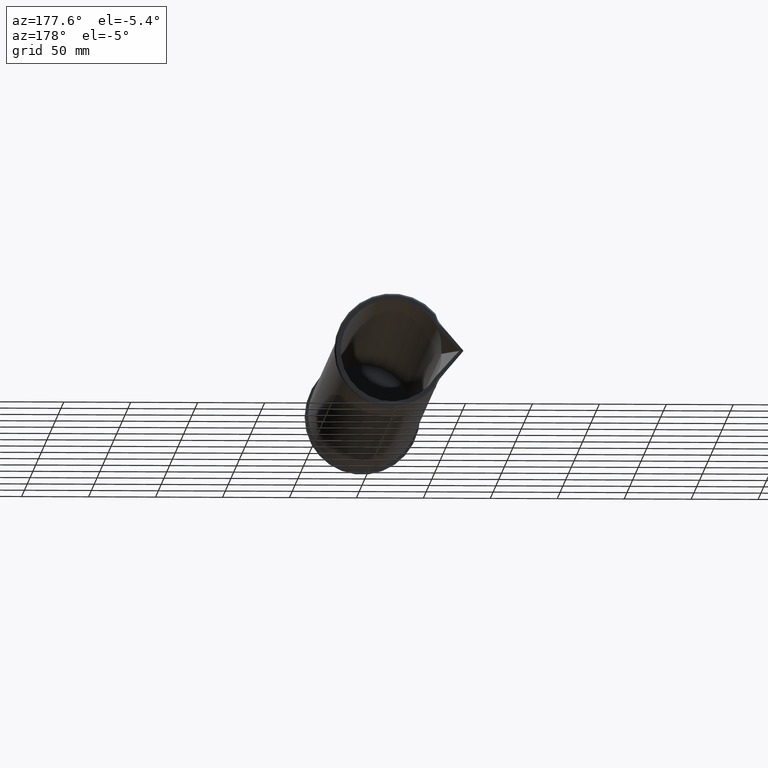
[diagram: clean part render]
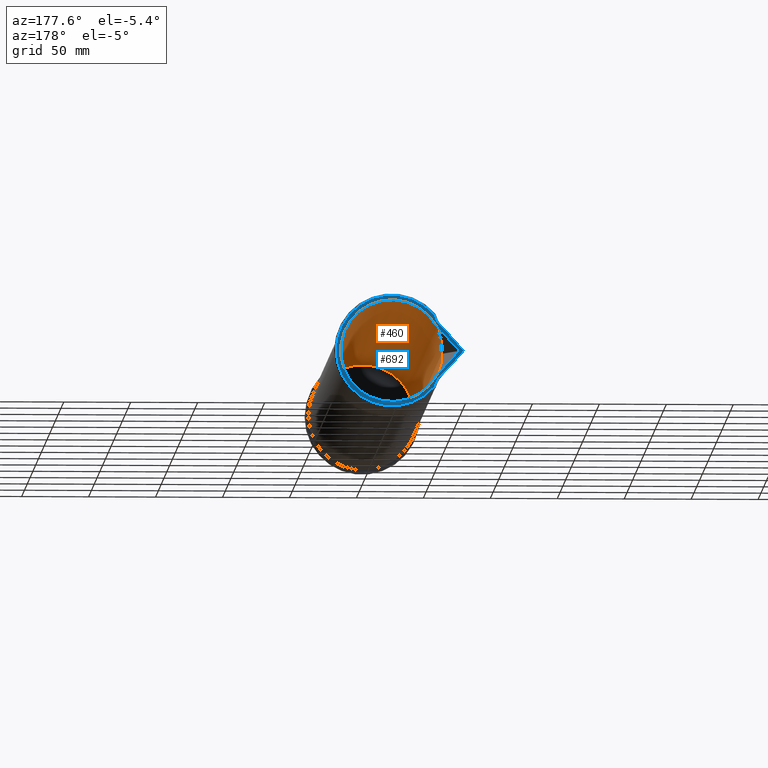
[diagram: same view with the hole feature highlighted: cylindrical wall and planar end face, labeled with their STEP entity ids]
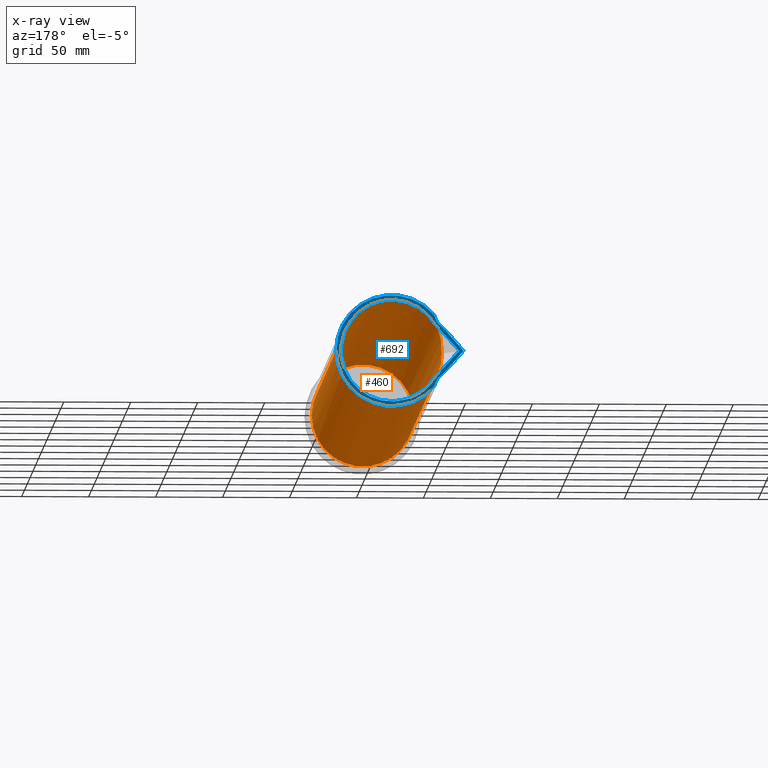
[diagram: x-ray of the same camera — body ghosted, the hole faces saturated]
A machine part, auxiliary view. The highlighted faces form one hole feature of diameter 76.36 mm: the cylindrical wall (entity #460, orange) and its adjacent planar end face (entity #692, blue) — they share a circular edge in the B-rep.
The next image is the same camera in x-ray (body ghosted, the hole faces saturated) — the bore reads through the body.
Wall:
#415=CARTESIAN_POINT('',(84.763954280378201,36.315100107620083,6.691971759253232));
#416=DIRECTION('',(0.0,0.0,1.0));
#417=DIRECTION('',(1.0,0.0,0.0));
#418=AXIS2_PLACEMENT_3D('',#415,#416,#417);
#419=CYLINDRICAL_SURFACE('',#418,1.503150212703601);
#420=CARTESIAN_POINT('',(83.260804067674599,36.315100107620083,6.972227477893022));
#421=VERTEX_POINT('',#420);
#422=CARTESIAN_POINT('',(84.763954280378201,36.315100107620083,6.972227477893022));
#423=DIRECTION('',(0.0,0.0,-1.0));
#424=DIRECTION('',(1.0,0.0,0.0));
#425=AXIS2_PLACEMENT_3D('',#422,#423,#424);
#426=CIRCLE('',#425,1.503150212703601);
#427=EDGE_CURVE('',#421,#421,#426,.T.);
#428=ORIENTED_EDGE('',*,*,#427,.T.);
#429=EDGE_LOOP('',(#428));
#430=FACE_OUTER_BOUND('',#429,.T.);
#431=CARTESIAN_POINT('',(83.462283038224228,35.563360432399826,27.312227586678503));
#432=VERTEX_POINT('',#431);
#433=CARTESIAN_POINT('',(83.260804067674599,36.315100107755640,26.335767806022361));
#434=VERTEX_POINT('',#433);
#435=CARTESIAN_POINT('',(84.763954280378201,36.315100107620083,23.294374467178745));
#436=DIRECTION('',(0.694654597459767,0.632128613092258,0.343319685916884));
#437=DIRECTION('',(0.253922352300887,0.231066756025292,-0.939218607812863));
#438=AXIS2_PLACEMENT_3D('',#435,#436,#437);
#439=ELLIPSE('',#438,4.378281451263788,1.503150212703602);
#440=EDGE_CURVE('',#432,#434,#439,.F.);
#441=ORIENTED_EDGE('',*,*,#440,.F.);
#442=CARTESIAN_POINT('',(83.462283038626268,37.066839783548723,27.312227586678503));
#443=VERTEX_POINT('',#442);
#444=CARTESIAN_POINT('',(84.763954280378201,36.315100107620083,27.312227586678503));
#445=DIRECTION('',(0.0,0.0,-1.0));
#446=DIRECTION('',(1.0,0.0,0.0));
#447=AXIS2_PLACEMENT_3D('',#444,#445,#446);
#448=CIRCLE('',#447,1.503150212703601);
#449=EDGE_CURVE('',#443,#432,#448,.T.);
#450=ORIENTED_EDGE('',*,*,#449,.F.);
#451=CARTESIAN_POINT('',(84.763954280378201,36.315100107620083,23.294374466679546));
#452=DIRECTION('',(-0.694654597459746,0.632128613092287,-0.343319685916874));
#453=DIRECTION('',(0.253922352300871,-0.231066756025295,-0.939218607812867));
#454=AXIS2_PLACEMENT_3D('',#451,#452,#453);
#455=ELLIPSE('',#454,4.378281451263914,1.503150212703601);
#456=EDGE_CURVE('',#434,#443,#455,.T.);
#457=ORIENTED_EDGE('',*,*,#456,.F.);
#458=EDGE_LOOP('',(#441,#450,#457));
#459=FACE_BOUND('',#458,.T.);
#460=ADVANCED_FACE('',(#430,#459),#419,.F.);
End face:
#431=CARTESIAN_POINT('',(83.462283038224228,35.563360432399826,27.312227586678503));
#432=VERTEX_POINT('',#431);
#442=CARTESIAN_POINT('',(83.462283038626268,37.066839783548723,27.312227586678503));
#443=VERTEX_POINT('',#442);
#444=CARTESIAN_POINT('',(84.763954280378201,36.315100107620083,27.312227586678503));
#445=DIRECTION('',(0.0,0.0,-1.0));
#446=DIRECTION('',(1.0,0.0,0.0));
#447=AXIS2_PLACEMENT_3D('',#444,#445,#446);
#448=CIRCLE('',#447,1.503150212703601);
#449=EDGE_CURVE('',#443,#432,#448,.T.);
#563=CARTESIAN_POINT('',(84.525524588158021,34.682975857355352,27.312227586678503));
#564=DIRECTION('',(0.0,0.0,1.0));
#565=DIRECTION('',(1.0,0.0,0.0));
#566=AXIS2_PLACEMENT_3D('',#563,#564,#565);
#567=PLANE('',#566);
#568=CARTESIAN_POINT('',(82.654980490230201,36.315100107620083,27.312227586678514));
#569=VERTEX_POINT('',#568);
#570=CARTESIAN_POINT('',(83.389089643338551,35.535445270278011,27.312227586678503));
#571=VERTEX_POINT('',#570);
#572=CARTESIAN_POINT('',(82.654980490239993,36.315100107628361,27.312227586678503));
#573=CARTESIAN_POINT('',(82.758813880279831,36.192274673929639,27.312227586678503));
#574=CARTESIAN_POINT('',(82.869143770187264,36.064814463535257,27.312227586677995));
#575=CARTESIAN_POINT('',(83.129589364639330,35.773560525107825,27.312227586677995));
#576=CARTESIAN_POINT('',(83.254549414931162,35.642373447990607,27.312227586678571));
#577=CARTESIAN_POINT('',(83.340820620108261,35.564849291373918,27.312227586678571));
#578=CARTESIAN_POINT('',(83.360052279130613,35.548327622955298,27.312227586678503));
#579=CARTESIAN_POINT('',(83.377251728139427,35.537879020702768,27.312227586678503));
#580=CARTESIAN_POINT('',(83.380811168437674,35.536038261045995,27.312227586678500));
#581=CARTESIAN_POINT('',(83.384740372841094,35.534946610036634,27.312227586678500));
#582=CARTESIAN_POINT('',(83.385845908008591,35.534735130173921,27.312227586678503));
#583=CARTESIAN_POINT('',(83.387284800722981,35.534790943575068,27.312227586678503));
#584=CARTESIAN_POINT('',(83.387700811259677,35.534848367940008,27.312227586678503));
#585=CARTESIAN_POINT('',(83.388452691530489,35.535075031298618,27.312227586678503));
#586=CARTESIAN_POINT('',(83.388787051241039,35.535230388137037,27.312227586678503));
#587=CARTESIAN_POINT('',(83.389089643338309,35.535445270278331,27.312227586678503));
#588=B_SPLINE_CURVE_WITH_KNOTS('',3,(#572,#573,#574,#575,#576,#577,#578,#579,#580,#581,#582,#583,#584,#585,#586,#587),.UNSPECIFIED.,.F.,.U.,(4,2,2,2,2,2,2,4),(-0.882378755755590,-0.573791335063924,-0.127677168280626,-0.037170168653339,-0.013804325229341,-0.005984262729737,-0.002827997833830,0.0),.UNSPECIFIED.);
#589=EDGE_CURVE('',#569,#571,#588,.T.);
#590=ORIENTED_EDGE('',*,*,#589,.T.);
#591=CARTESIAN_POINT('',(83.503530772824462,35.308768488924585,27.312227586678503));
#592=VERTEX_POINT('',#591);
#593=CARTESIAN_POINT('',(82.696222491181047,35.043413989120502,27.312227586678482));
#594=DIRECTION('',(0.0,0.0,1.000000000000000));
#595=DIRECTION('',(0.953832961574979,0.300337612384970,0.0));
#596=AXIS2_PLACEMENT_3D('',#593,#594,#595);
#597=CIRCLE('',#596,0.849799783582178);
#598=EDGE_CURVE('',#592,#571,#597,.T.);
#599=ORIENTED_EDGE('',*,*,#598,.F.);
#600=CARTESIAN_POINT('',(83.506789535501014,35.298640827126846,27.312227586678503));
#601=VERTEX_POINT('',#600);
#602=CARTESIAN_POINT('',(82.696222491181047,35.043413989120502,27.312227586678503));
#603=DIRECTION('',(0.0,0.0,1.0));
#604=DIRECTION('',(0.895487023913152,0.445087620590784,0.0));
#605=AXIS2_PLACEMENT_3D('',#602,#603,#604);
#606=CIRCLE('',#605,0.849799783582180);
#607=EDGE_CURVE('',#601,#592,#606,.T.);
#608=ORIENTED_EDGE('',*,*,#607,.F.);
#609=CARTESIAN_POINT('',(83.526224833531430,35.251213188252834,27.312227586678503));
#610=VERTEX_POINT('',#609);
#611=CARTESIAN_POINT('',(83.798590514754295,35.390521494844421,27.312227586678503));
#612=DIRECTION('',(0.0,0.0,-1.0));
#613=DIRECTION('',(-0.917933579167096,-0.396734097649150,0.0));
#614=AXIS2_PLACEMENT_3D('',#611,#612,#613);
#615=CIRCLE('',#614,0.305924612598287);
#616=EDGE_CURVE('',#610,#601,#615,.T.);
#617=ORIENTED_EDGE('',*,*,#616,.F.);
#618=CARTESIAN_POINT('',(83.526224833531430,37.378987026987360,27.312227586678503));
#619=VERTEX_POINT('',#618);
#620=CARTESIAN_POINT('',(84.763954283411948,36.315100107620083,27.312227586678503));
#621=DIRECTION('',(0.0,0.0,-1.0));
#622=DIRECTION('',(1.0,0.0,0.0));
#623=AXIS2_PLACEMENT_3D('',#620,#621,#622);
#624=CIRCLE('',#623,1.632124250264740);
#625=EDGE_CURVE('',#619,#610,#624,.T.);
#626=ORIENTED_EDGE('',*,*,#625,.F.);
#627=CARTESIAN_POINT('',(83.506789535501014,37.331559388113341,27.312227586678503));
#628=VERTEX_POINT('',#627);
#629=CARTESIAN_POINT('',(83.798590514754295,37.239678720395752,27.312227586678503));
#630=DIRECTION('',(0.0,0.0,1.0));
#631=DIRECTION('',(-0.917933579167096,0.396734097649150,0.0));
#632=AXIS2_PLACEMENT_3D('',#629,#630,#631);
#633=CIRCLE('',#632,0.305924612598287);
#634=EDGE_CURVE('',#619,#628,#633,.T.);
#635=ORIENTED_EDGE('',*,*,#634,.T.);
#636=CARTESIAN_POINT('',(83.503530772824462,37.321431726315602,27.312227586678503));
#637=VERTEX_POINT('',#636);
#638=CARTESIAN_POINT('',(82.696222491181047,37.586786226119671,27.312227586678503));
#639=DIRECTION('',(0.0,0.0,-1.0));
#640=DIRECTION('',(0.895487023913152,-0.445087620590784,0.0));
#641=AXIS2_PLACEMENT_3D('',#638,#639,#640);
#642=CIRCLE('',#641,0.849799783582180);
#643=EDGE_CURVE('',#628,#637,#642,.T.);
#644=ORIENTED_EDGE('',*,*,#643,.T.);
#645=CARTESIAN_POINT('',(83.389089643338551,37.094754944962176,27.312227586678503));
#646=VERTEX_POINT('',#645);
#647=CARTESIAN_POINT('',(82.696222491181047,37.586786226119671,27.312227586678503));
#648=DIRECTION('',(0.0,0.0,-1.0));
#649=DIRECTION('',(0.895487023913152,-0.445087620590784,0.0));
#650=AXIS2_PLACEMENT_3D('',#647,#648,#649);
#651=CIRCLE('',#650,0.849799783582180);
#652=EDGE_CURVE('',#637,#646,#651,.T.);
#653=ORIENTED_EDGE('',*,*,#652,.T.);
#654=CARTESIAN_POINT('',(83.389089643338380,37.094754944961998,27.312227586678503));
#655=CARTESIAN_POINT('',(83.388791025343664,37.094967004942127,27.312227586678503));
#656=CARTESIAN_POINT('',(83.388461416540494,37.095121130202934,27.312227586678503));
#657=CARTESIAN_POINT('',(83.387720968332331,37.095347298452943,27.312227586678503));
#658=CARTESIAN_POINT('',(83.387311751969762,37.095405945028453,27.312227586678503));
#659=CARTESIAN_POINT('',(83.385897290124745,37.095468419995605,27.312227586678503));
#660=CARTESIAN_POINT('',(83.384812229330137,37.095267686186261,27.312227586678503));
#661=CARTESIAN_POINT('',(83.381235773654907,37.094294804754902,27.312227586678503));
#662=CARTESIAN_POINT('',(83.378234409480314,37.092797823567594,27.312227586678510));
#663=CARTESIAN_POINT('',(83.364158877809075,37.084717866618696,27.312227586678510));
#664=CARTESIAN_POINT('',(83.348617261424309,37.071869647758838,27.312227586678503));
#665=CARTESIAN_POINT('',(83.267668110576139,37.001449298698915,27.312227586678503));
#666=CARTESIAN_POINT('',(83.154938754139906,36.880868769672375,27.312227586677750));
#667=CARTESIAN_POINT('',(82.960045455542172,36.670203698733090,27.312227586677750));
#668=CARTESIAN_POINT('',(82.797677806043950,36.483898022179950,27.312227586678503));
#669=CARTESIAN_POINT('',(82.654980490239979,36.315100107611805,27.312227586678503));
#670=B_SPLINE_CURVE_WITH_KNOTS('',3,(#654,#655,#656,#657,#658,#659,#660,#661,#662,#663,#664,#665,#666,#667,#668,#669),.UNSPECIFIED.,.F.,.U.,(4,2,2,2,2,2,2,4),(-2.392925572697324,-2.389680296589466,-2.386065152267008,-2.377130888054587,-2.353110109522843,-2.253361248494820,-1.684266116348417,-0.000001000146373),.UNSPECIFIED.);
#671=EDGE_CURVE('',#646,#569,#670,.T.);
#672=ORIENTED_EDGE('',*,*,#671,.T.);
#673=EDGE_LOOP('',(#590,#599,#608,#617,#626,#635,#644,#653,#672));
#674=FACE_OUTER_BOUND('',#673,.T.);
#675=CARTESIAN_POINT('',(82.778207585291483,36.315100107755640,27.312227586678503));
#676=VERTEX_POINT('',#675);
#677=CARTESIAN_POINT('',(82.778207585291483,36.315100107755640,27.312227586678503));
#678=DIRECTION('',(0.673036722053841,0.739609066174165,0.0));
#679=VECTOR('',#678,1.016401380369326);
#680=LINE('',#677,#679);
#681=EDGE_CURVE('',#676,#443,#680,.T.);
#682=ORIENTED_EDGE('',*,*,#681,.T.);
#683=ORIENTED_EDGE('',*,*,#449,.T.);
#684=CARTESIAN_POINT('',(83.462283038224228,35.563360432399826,27.312227586678503));
#685=DIRECTION('',(-0.673036722051630,0.739609066176178,0.0));
#686=VECTOR('',#685,1.016401379775336);
#687=LINE('',#684,#686);
#688=EDGE_CURVE('',#432,#676,#687,.T.);
#689=ORIENTED_EDGE('',*,*,#688,.T.);
#690=EDGE_LOOP('',(#682,#683,#689));
#691=FACE_BOUND('',#690,.T.);
#692=ADVANCED_FACE('',(#674,#691),#567,.T.);